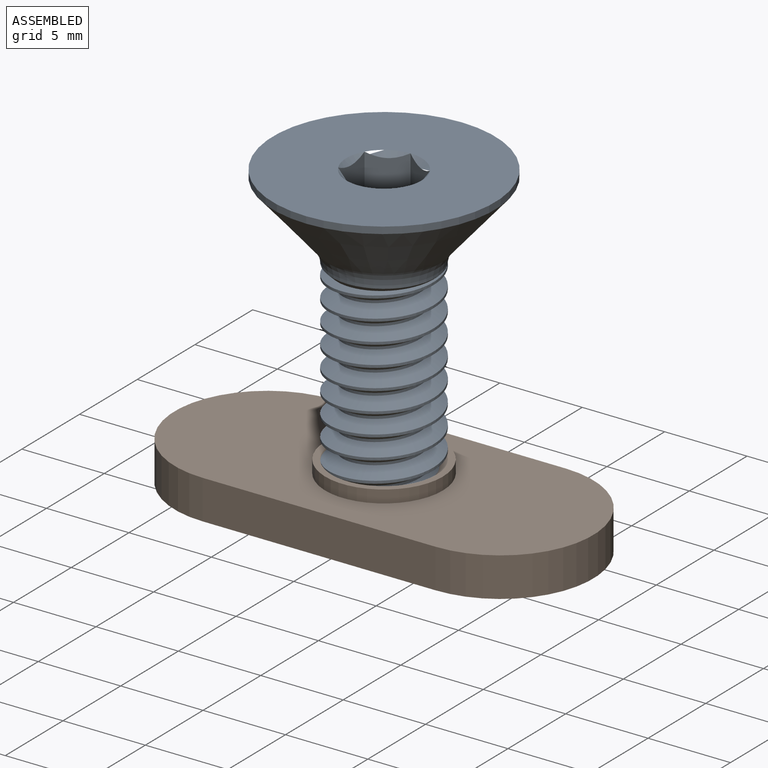
[diagram: assembled view]
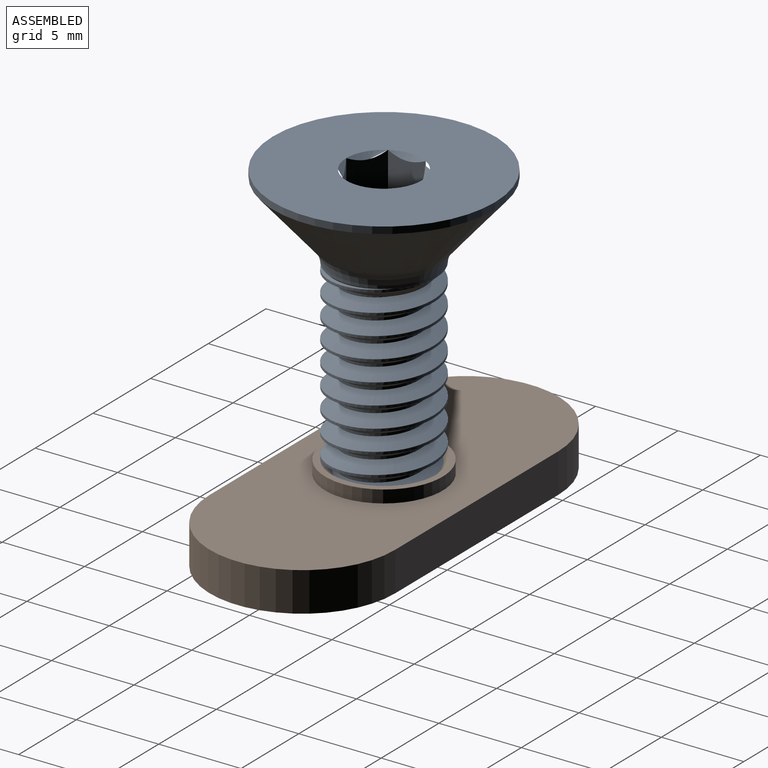
[diagram: assembled view, second angle]
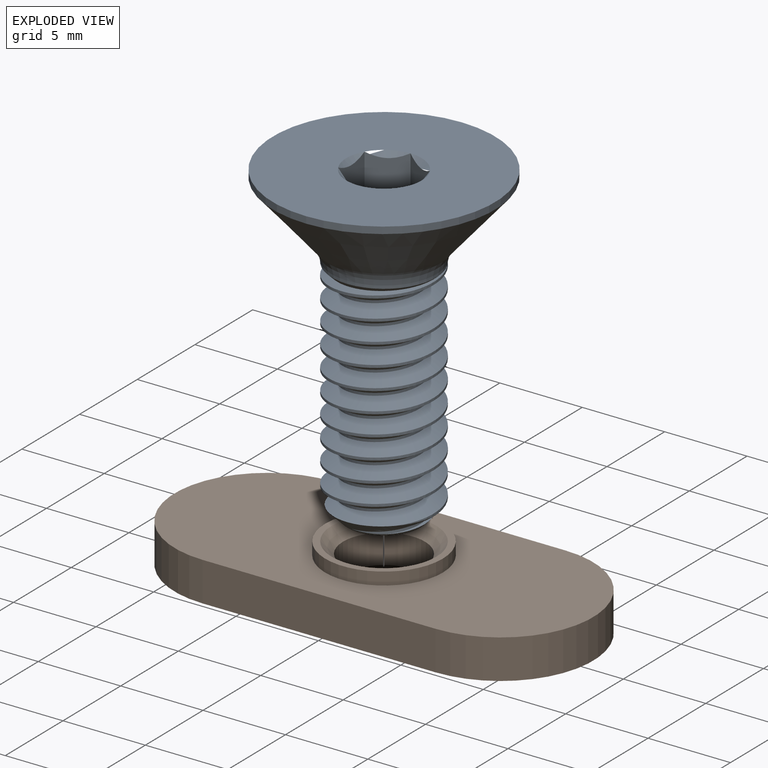
[diagram: exploded view]
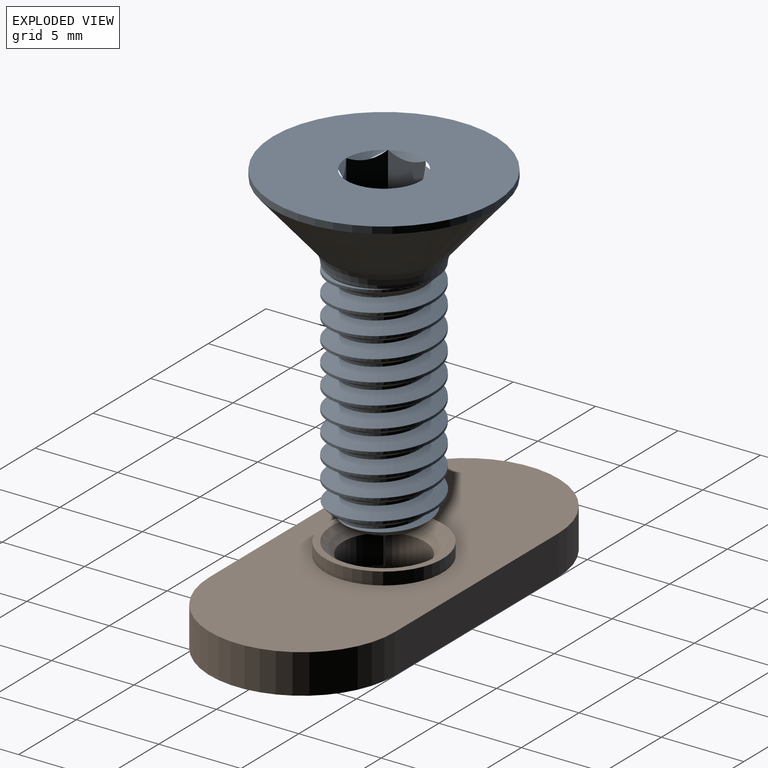
[diagram: exploded view, second angle]
ASSEMBLY  parts=2 mates=2
PART A: 25 faces, bbox 14.4x14.4x20.4 mm
  f0: cylinder r=3.17mm len=13.02mm, axis (0,0,-1), area 32.4mm2, adj f1,f3,f5,f7
  f1: bspline ~14.13x6.35mm, area 169.9mm2, adj f0,f2,f5,f11
  f2: cylinder r=2.35mm len=13.05mm, axis (0,0,1), area 24mm2, adj f1,f3,f4,f11
  f3: bspline ~15.08x6.35mm, area 169.9mm2, adj f0,f2,f4,f5,f11
  f4: cone r=2.22mm half-angle=45deg, axis (0,0,1), area 9.7mm2, adj f2,f3,f5,f6
  f5: cone r=2.22mm half-angle=45deg, axis (0,0,1), area 2.7mm2, adj f0,f1,f3,f4
  f6: plane 4.45x4.45mm, normal (0,0,-1), area 15.5mm2, adj f4
  f7: torus R=4.68mm, axis (0,0,1), area 22.3mm2, adj f0,f8,f11
  f8: cone r=3.54mm half-angle=41deg, axis (0,0,1), area 157.6mm2, adj f7,f9
  f9: cylinder r=6.74mm len=13.49mm, axis (0,0,1), area 17.3mm2, adj f8,f10
  f10: plane 14.23x14.23mm, normal (0,0,1), area 126.4mm2, adj f9,f12,f13,f14,f15,f16,f17
  f11: cone r=3.17mm half-angle=46deg, axis (0,0,1), area 10.3mm2, adj f1,f2,f3,f7
  f12: cone r=2.29mm half-angle=45deg, axis (0,0,1), area 0mm2, adj f10,f19
  f13: cone r=2.29mm half-angle=45deg, axis (0,0,1), area 0mm2, adj f10,f20
  f14: cone r=2.29mm half-angle=45deg, axis (0,0,1), area 0mm2, adj f10,f21
  f15: cone r=2.29mm half-angle=45deg, axis (0,0,1), area 0mm2, adj f10,f22
  f16: cone r=2.29mm half-angle=45deg, axis (0,0,1), area 0mm2, adj f10,f23
  f17: cone r=2.29mm half-angle=45deg, axis (0,0,1), area 0mm2, adj f10,f24
  f18: plane 4.58x3.97mm, normal (0,0,1), area 13.6mm2, adj f19,f20,f21,f22,f23,f24
  f19: plane 3.73x3.16mm, normal (-1,0,0), area 6.1mm2, adj f12,f18,f20,f24
  f20: plane 3.73x2.85mm, normal (-0.5,-0.87,0), area 6.1mm2, adj f13,f18,f19,f21
  f21: plane 3.73x2.85mm, normal (0.5,-0.87,0), area 6.1mm2, adj f14,f18,f20,f22
  f22: plane 3.73x3.16mm, normal (1,0,0), area 6.1mm2, adj f15,f18,f21,f23
  f23: plane 3.73x2.85mm, normal (0.5,0.87,0), area 6.1mm2, adj f16,f18,f22,f24
  f24: plane 3.73x2.85mm, normal (-0.5,0.87,0), area 6.1mm2, adj f17,f18,f19,f23
PART B: 11 faces, bbox 25.4x11.3x3.1 mm
  f0: plane 25.4x11.25mm, normal (0,0,-1), area 227mm2, adj f3,f4,f5,f6,f10
  f1: cylinder r=3.57mm len=7.14mm, axis (0,0,1), area 17.1mm2, adj f2,f7
  f2: plane 25.4x11.25mm, normal (0,0,1), area 218.6mm2, adj f1,f3,f4,f5,f6
  f3: plane 14.15x2.39mm, normal (0,1,0), area 33.8mm2, adj f0,f2,f4,f6
  f4: cylinder r=5.63mm len=11.25mm, axis (0,0,1), area 42.2mm2, adj f0,f2,f3,f5
  f5: plane 14.15x2.39mm, normal (0,-1,0), area 33.8mm2, adj f0,f2,f4,f6
  f6: cylinder r=5.63mm len=11.25mm, axis (0,0,1), area 42.2mm2, adj f0,f2,f3,f5
  f7: plane 7.14x7.14mm, normal (0,0,1), area 8.3mm2, adj f1,f8
  f8: cone r=3.17mm half-angle=45deg, axis (0,0,1), area 17.3mm2, adj f7,f9
  f9: cylinder r=2.49mm len=4.98mm, axis (0,0,1), area 27.8mm2, adj f8,f10
  f10: cone r=2.49mm half-angle=45deg, axis (0,0,-1), area 17.3mm2, adj f0,f9
PLACE A t=(10.48,5,18.49)mm
PLACE B t=(10.48,5,0.64)mm
MATE slider A.f0 <-> B.f1  axis (0,0,-1) through (10.48,5,-0.56)mm
MATE planar B.f6 <-> A.f0  axis (0,0,-1) through (17.55,5,-0.56)mm
